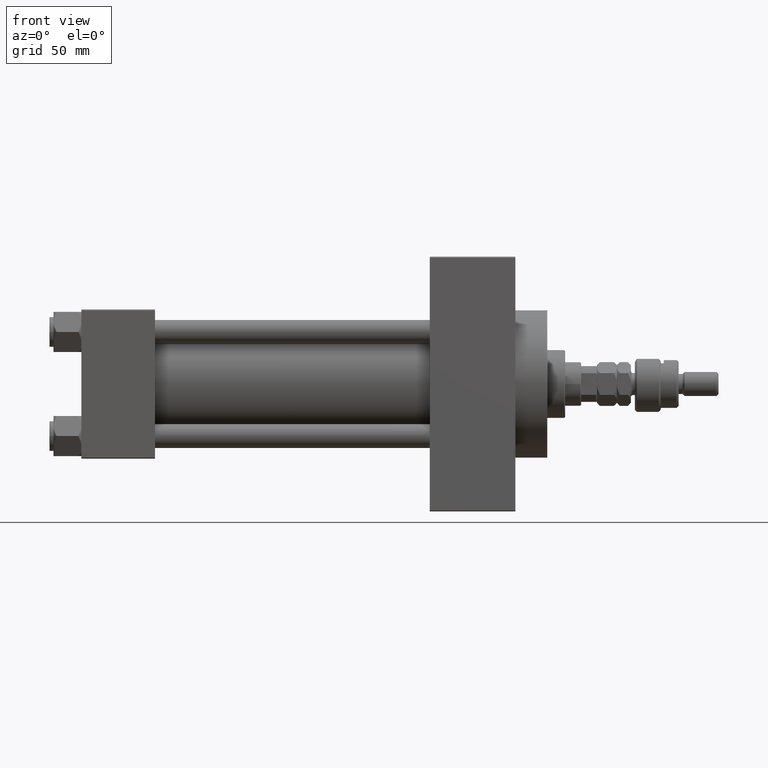
[diagram: clean part render]
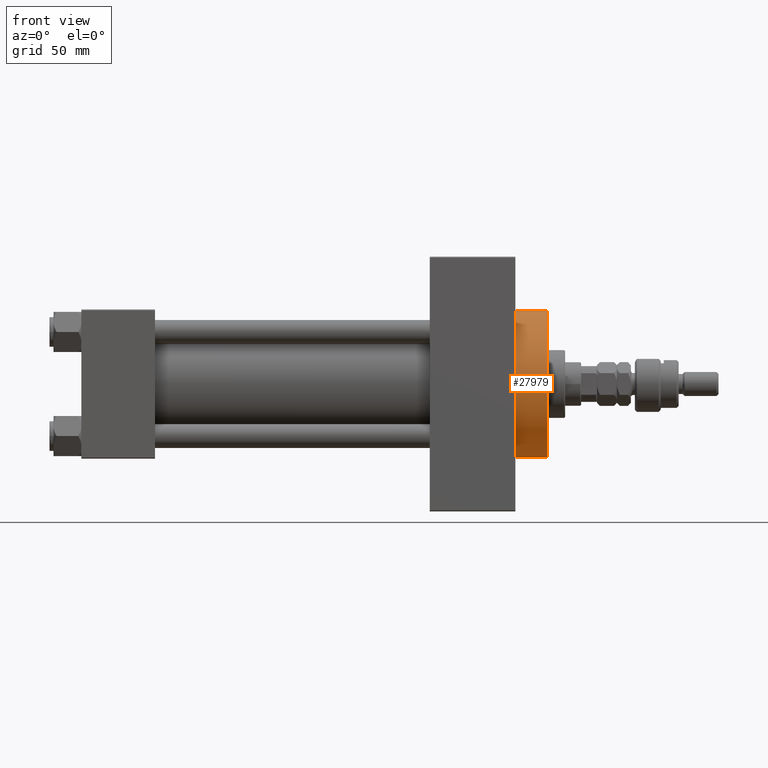
[diagram: same view with one face highlighted and labeled with its STEP entity id]
A machine part, front view. The second image highlights one B-rep face of the part: STEP entity #27979.
In plain terms, the highlighted cylindrical surface (partial cylindrical patch) has radius 37 mm, axis along (-1, -0, -0).
Its self-contained STEP definition (entity closure, byte-faithful):
#758 = DIRECTION ( 'NONE',  ( 0.000000000000000000, 0.000000000000000000, 1.000000000000000000 ) ) ;
#1723 = DIRECTION ( 'NONE',  ( 1.000000000000000000, 0.000000000000000000, 0.000000000000000000 ) ) ;
#2018 = VERTEX_POINT ( 'NONE', #37125 ) ;
#3344 = DIRECTION ( 'NONE',  ( 0.000000000000000000, 0.000000000000000000, -1.000000000000000000 ) ) ;
#7586 = EDGE_CURVE ( 'NONE', #44295, #46311, #39023, .T. ) ;
#7645 = DIRECTION ( 'NONE',  ( 1.000000000000000000, 0.000000000000000000, 0.000000000000000000 ) ) ;
#10449 = CARTESIAN_POINT ( 'NONE',  ( 218.0000000000000284, 0.000000000000000000, 0.000000000000000000 ) ) ;
#13887 = CARTESIAN_POINT ( 'NONE',  ( 234.0000000000000284, 0.000000000000000000, 0.000000000000000000 ) ) ;
#14178 = LINE ( 'NONE', #29661, #24046 ) ;
#14400 = AXIS2_PLACEMENT_3D ( 'NONE', #10449, #7645, #3344 ) ;
#16173 = CARTESIAN_POINT ( 'NONE',  ( 234.0000000000000284, 4.531193156845206793E-15, -37.00000000000000000 ) ) ;
#17388 = AXIS2_PLACEMENT_3D ( 'NONE', #13887, #1723, #32684 ) ;
#17580 = AXIS2_PLACEMENT_3D ( 'NONE', #27677, #46731, #758 ) ;
#18856 = ORIENTED_EDGE ( 'NONE', *, *, #40170, .F. ) ;
#22316 = CARTESIAN_POINT ( 'NONE',  ( 218.0000000000000284, 4.531193156845206793E-15, -37.00000000000000000 ) ) ;
#22656 = EDGE_LOOP ( 'NONE', ( #44550, #18856, #42688, #23167 ) ) ;
#23167 = ORIENTED_EDGE ( 'NONE', *, *, #50037, .T. ) ;
#24046 = VECTOR ( 'NONE', #47980, 1000.000000000000000 ) ;
#25800 = VERTEX_POINT ( 'NONE', #43857 ) ;
#27677 = CARTESIAN_POINT ( 'NONE',  ( 234.0000000000000284, 0.000000000000000000, 0.000000000000000000 ) ) ;
#27979 = ADVANCED_FACE ( 'NONE', ( #35030 ), #43412, .T. ) ;
#28076 = EDGE_CURVE ( 'NONE', #25800, #2018, #14178, .T. ) ;
#29661 = CARTESIAN_POINT ( 'NONE',  ( 234.0000000000000284, 0.000000000000000000, 37.00000000000000000 ) ) ;
#29796 = CIRCLE ( 'NONE', #14400, 37.00000000000000000 ) ;
#30836 = CARTESIAN_POINT ( 'NONE',  ( 234.0000000000000284, 4.531193156845206793E-15, -37.00000000000000000 ) ) ;
#32514 = VECTOR ( 'NONE', #47155, 1000.000000000000000 ) ;
#32684 = DIRECTION ( 'NONE',  ( 0.000000000000000000, 0.000000000000000000, -1.000000000000000000 ) ) ;
#35030 = FACE_OUTER_BOUND ( 'NONE', #22656, .T. ) ;
#37125 = CARTESIAN_POINT ( 'NONE',  ( 218.0000000000000284, 0.000000000000000000, 37.00000000000000000 ) ) ;
#39023 = LINE ( 'NONE', #16173, #32514 ) ;
#39271 = CIRCLE ( 'NONE', #17388, 37.00000000000000000 ) ;
#40170 = EDGE_CURVE ( 'NONE', #25800, #44295, #39271, .T. ) ;
#42688 = ORIENTED_EDGE ( 'NONE', *, *, #28076, .T. ) ;
#43412 = CYLINDRICAL_SURFACE ( 'NONE', #17580, 37.00000000000000000 ) ;
#43857 = CARTESIAN_POINT ( 'NONE',  ( 234.0000000000000284, 0.000000000000000000, 37.00000000000000000 ) ) ;
#44295 = VERTEX_POINT ( 'NONE', #30836 ) ;
#44550 = ORIENTED_EDGE ( 'NONE', *, *, #7586, .F. ) ;
#46311 = VERTEX_POINT ( 'NONE', #22316 ) ;
#46731 = DIRECTION ( 'NONE',  ( -1.000000000000000000, -0.000000000000000000, -0.000000000000000000 ) ) ;
#47155 = DIRECTION ( 'NONE',  ( -1.000000000000000000, -0.000000000000000000, -0.000000000000000000 ) ) ;
#47980 = DIRECTION ( 'NONE',  ( -1.000000000000000000, -0.000000000000000000, -0.000000000000000000 ) ) ;
#50037 = EDGE_CURVE ( 'NONE', #2018, #46311, #29796, .T. ) ;